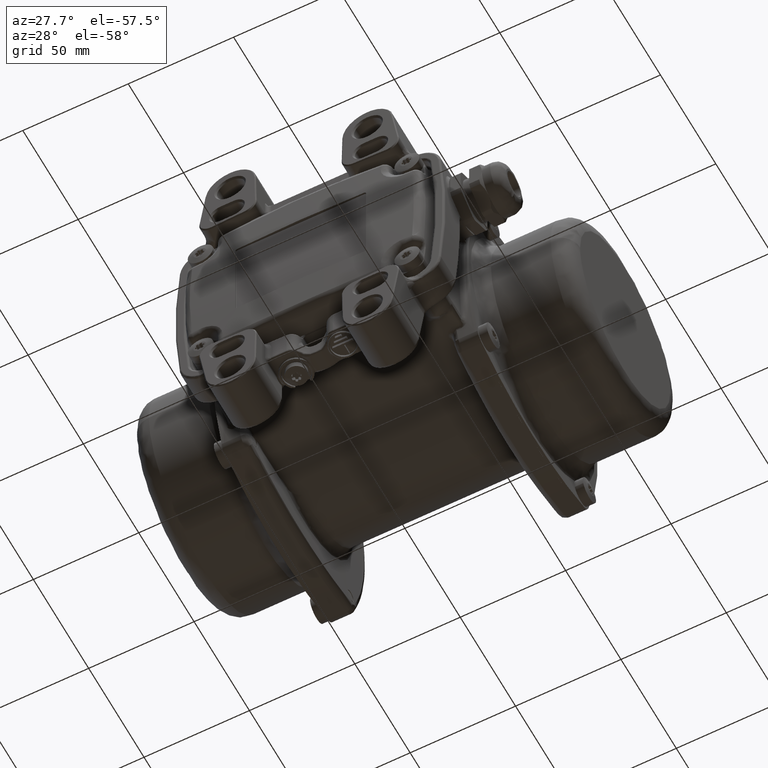
[diagram: clean part render]
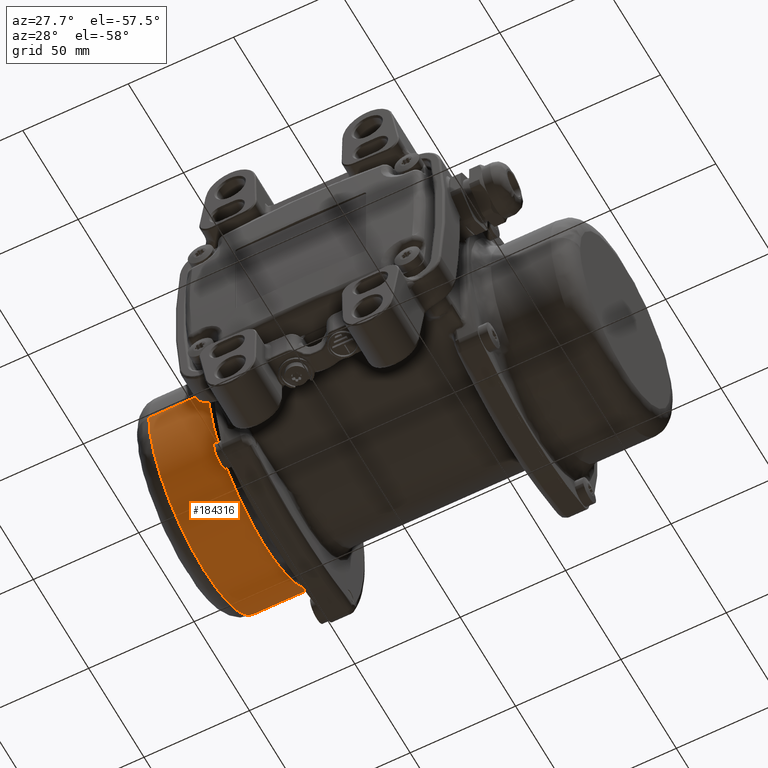
[diagram: same view with one face highlighted and labeled with its STEP entity id]
A machine part, auxiliary view. The second image highlights one B-rep face of the part: STEP entity #184316.
In plain terms, the highlighted cylindrical surface (partial cylindrical patch) has radius 49.9 mm, axis along (-1, 0, 0).
Its self-contained STEP definition (entity closure, byte-faithful):
#11830 = CARTESIAN_POINT ( 'NONE',  ( -67.00000000000002800, -49.89999999999958600, 2.993351353833730300E-013 ) ) ;
#12863 = CARTESIAN_POINT ( 'NONE',  ( -104.4999999999999900, 49.90000000000040400, 2.890265951419733500E-013 ) ) ;
#34295 = AXIS2_PLACEMENT_3D ( 'NONE', #45710, #59411, #45089 ) ;
#40570 = VERTEX_POINT ( 'NONE', #107062 ) ;
#44950 = VECTOR ( 'NONE', #167843, 1000.000000000000000 ) ;
#45089 = DIRECTION ( 'NONE',  ( -5.562239602330445700E-016, -1.000000000000000000, 3.469446951953611700E-016 ) ) ;
#45710 = CARTESIAN_POINT ( 'NONE',  ( -95.29999999999996900, 4.128528584499306500E-013, 2.957617189480915600E-013 ) ) ;
#50921 = CYLINDRICAL_SURFACE ( 'NONE', #115345, 49.89999999999998400 ) ;
#52547 = CIRCLE ( 'NONE', #162183, 49.89999999999997700 ) ;
#54577 = DIRECTION ( 'NONE',  ( -1.000000000000000000, 4.732521849571005100E-016, 4.854814083027222700E-016 ) ) ;
#58283 = DIRECTION ( 'NONE',  ( -5.562239602330445700E-016, -1.000000000000000000, 3.469446951953612200E-016 ) ) ;
#59411 = DIRECTION ( 'NONE',  ( 1.000000000000000000, -4.732521849571005100E-016, -4.854814083027222700E-016 ) ) ;
#60684 = LINE ( 'NONE', #170305, #44950 ) ;
#62686 = FACE_OUTER_BOUND ( 'NONE', #101545, .T. ) ;
#71528 = CARTESIAN_POINT ( 'NONE',  ( -104.5000000000000100, 4.172067785515359600E-013, 3.002281479044765700E-013 ) ) ;
#72731 = ORIENTED_EDGE ( 'NONE', *, *, #95187, .T. ) ;
#80967 = VERTEX_POINT ( 'NONE', #113083 ) ;
#85138 = CARTESIAN_POINT ( 'NONE',  ( -95.29999999999994000, 49.90000000000040400, 2.776906042581048100E-013 ) ) ;
#93548 = LINE ( 'NONE', #12863, #144838 ) ;
#95187 = EDGE_CURVE ( 'NONE', #80967, #166748, #52547, .T. ) ;
#98708 = DIRECTION ( 'NONE',  ( -1.000000000000000000, 4.732521849571005100E-016, 4.854814083027222700E-016 ) ) ;
#99935 = CARTESIAN_POINT ( 'NONE',  ( -67.00000000000000000, 3.965992272525897700E-013, 2.820225950931245000E-013 ) ) ;
#101545 = EDGE_LOOP ( 'NONE', ( #137091, #72731, #171313, #124606 ) ) ;
#102012 = DIRECTION ( 'NONE',  ( -5.562239602330445700E-016, -1.000000000000000000, 3.469446951953611700E-016 ) ) ;
#102285 = VERTEX_POINT ( 'NONE', #85138 ) ;
#107062 = CARTESIAN_POINT ( 'NONE',  ( -95.29999999999999700, -49.89999999999957900, 3.130742592383400400E-013 ) ) ;
#113083 = CARTESIAN_POINT ( 'NONE',  ( -66.99999999999997200, 49.90000000000038200, 2.776906042581047600E-013 ) ) ;
#115345 = AXIS2_PLACEMENT_3D ( 'NONE', #71528, #172917, #102012 ) ;
#115853 = EDGE_CURVE ( 'NONE', #166748, #40570, #60684, .T. ) ;
#124606 = ORIENTED_EDGE ( 'NONE', *, *, #130700, .T. ) ;
#130700 = EDGE_CURVE ( 'NONE', #40570, #102285, #137265, .T. ) ;
#137091 = ORIENTED_EDGE ( 'NONE', *, *, #143122, .F. ) ;
#137265 = CIRCLE ( 'NONE', #34295, 49.89999999999998400 ) ;
#143122 = EDGE_CURVE ( 'NONE', #80967, #102285, #93548, .T. ) ;
#144838 = VECTOR ( 'NONE', #54577, 1000.000000000000000 ) ;
#162183 = AXIS2_PLACEMENT_3D ( 'NONE', #99935, #98708, #58283 ) ;
#166748 = VERTEX_POINT ( 'NONE', #11830 ) ;
#167843 = DIRECTION ( 'NONE',  ( -1.000000000000000000, 4.732521849571005100E-016, 4.854814083027222700E-016 ) ) ;
#170305 = CARTESIAN_POINT ( 'NONE',  ( -104.5000000000000400, -49.89999999999957200, 3.175406881947251100E-013 ) ) ;
#171313 = ORIENTED_EDGE ( 'NONE', *, *, #115853, .T. ) ;
#172917 = DIRECTION ( 'NONE',  ( -1.000000000000000000, 4.732521849571005100E-016, 4.854814083027222700E-016 ) ) ;
#184316 = ADVANCED_FACE ( 'NONE', ( #62686 ), #50921, .T. ) ;